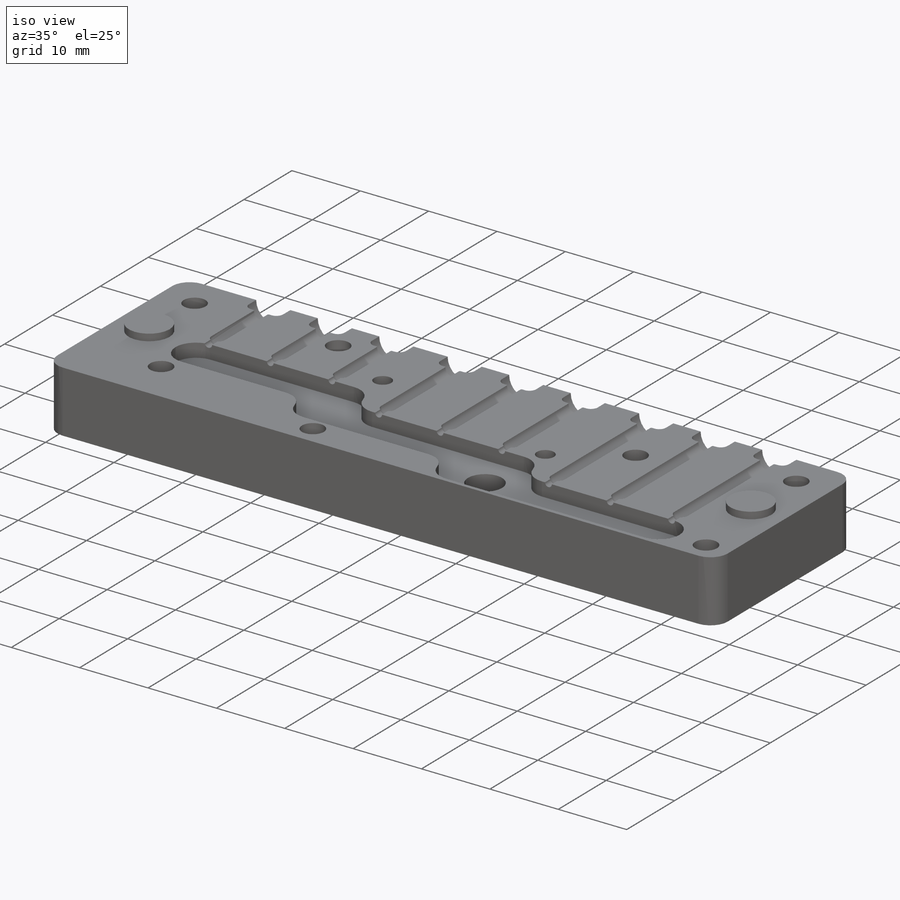
[diagram: iso view]
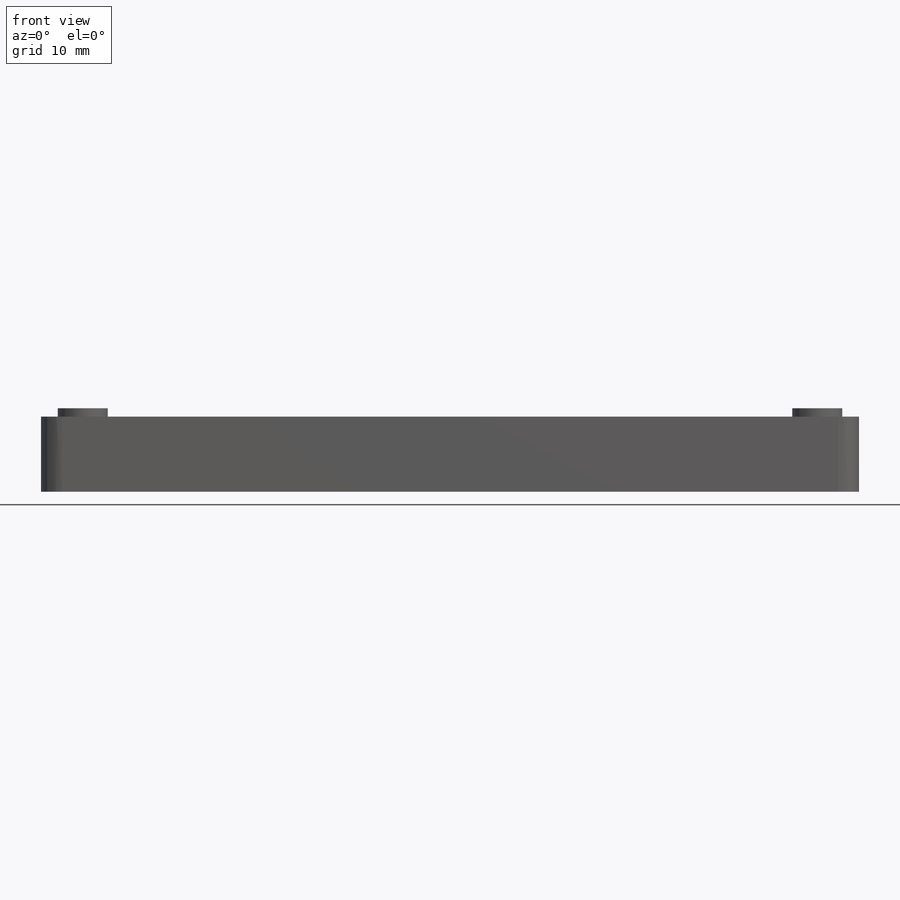
[diagram: front view]
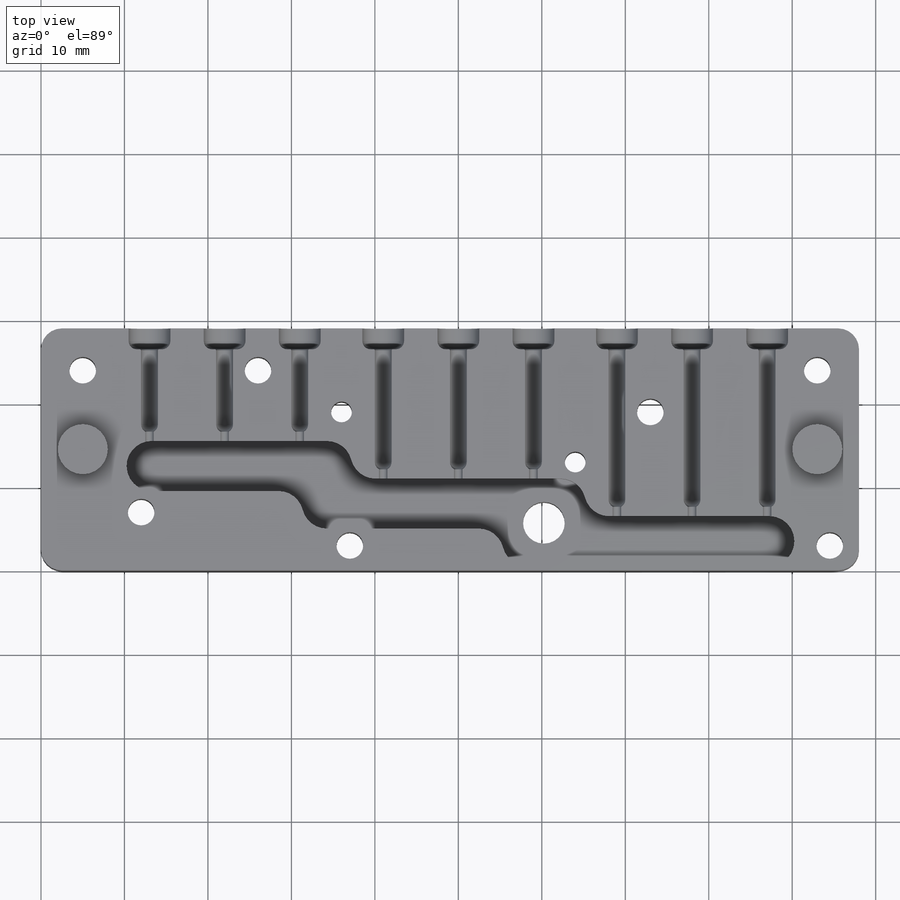
[diagram: top view]
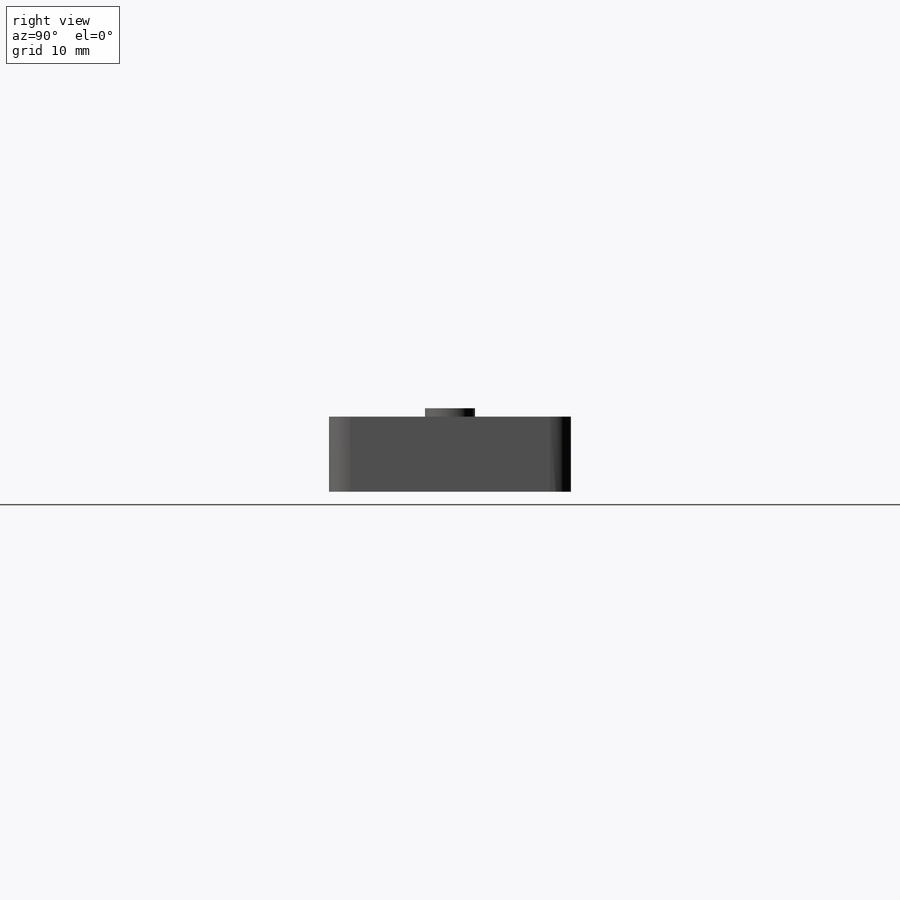
[diagram: right view]
SOLIDWORKS PART (.sldprt)
format: sldprt  version: not decoded by parser v0  size: 1,784,320 bytes
history: native  units: mm
features: sketch x17, cut_extrude x8, fillet x6, plane x3, extrude x3, hole x2, thread x2, material x1, chamfer x1 (+9 scaffold rows collapsed)
feature tree (52):
  scaffold x9  (default folders/planes/origin — collapsed)
  material  "Material <nicht festgelegt>"
  plane  "Ebene vorne"
  plane  "Ebene oben"
  plane  "Ebene rechts"
  sketch  "Skizze1"  dims[D1=98.0mm D2=29.0mm]
  extrude  "Aufsatz-Linear austragen1"  Depth=9mm
  sketch  "Skizze2"  dims[D1=2.0mm D2=9.0mm D3=13.0mm D5=10.0mm D6=36.0mm D4=3.0]
  cut_extrude  "Schnitt-Linear austragen1"  Depth=12.5mm
  fillet  "Verrundung5"  Radius=2.5mm
  cut_extrude  "Schnitt-Linear austragen2"  [1 undecoded]
  sketch  "Skizze2<4>"  dims[D1=17.0mm]
  cut_extrude  "Schnitt-Linear austragen3"  [1 undecoded]
  sketch  "Skizze2<5>"  dims[D1=21.5mm]
  sketch  "Skizze4"  dims[D1=5.0mm D2=3.0]
  cut_extrude  "Schnitt-Linear austragen4"  Depth=2.5mm
  fillet  "Verrundung1"  Radius=1mm
  chamfer  "Fase1"  Distance=0.1mm Angle=45deg
  sketch  "Skizze5"  dims[c1.D1=1.0mm c1.D2=0.5mm c1.D4=9.0mm c1.D5=4.0mm c1.D6=9.0mm c1.D8=9.0mm c2.D2=0.5mm c2.D3=3.0 c2.D5=3.0 c2.D7=3.0]
  cut_extrude  "Schnitt-Linear austragen5"  Depth=0.25mm
  sketch  "Skizze6"  dims[D1=6.0mm D2=6.0mm D3=6.0mm D4=10.0mm D5=2.5mm D6=3.0mm]
  cut_extrude  "Schnitt-Linear austragen6"  Depth=2mm
  sketch  "Skizze7"  dims[D1=5.0mm]
  cut_extrude  "Schnitt-Linear austragen7"  [1 undecoded]
  fillet  "Verrundung2"  Radius=3mm
  fillet  "Verrundung6"  Radius=3mm
  sketch  "Skizze15"  dims[D1=1.0mm D2=3.0 D3=3.0]
  cut_extrude  "Schnitt-Linear austragen8"  [1 undecoded]
  hole  "Durchgangsloch für M31"  Diameter=3.2mm Depth=9mm
  sketch  "Skizze9"  dims[D1=5.0mm D2=5.0mm D3=26.0mm D4=5.0mm D5=25.0mm D6=5.0mm D7=12.0mm D8=3.5mm D9=3.0mm D10=4.0mm D11=25.0mm]
  sketch  "Skizze8"  dims[hole-wizard template sketch: 59 standard entries collapsed; hole parameters kept: c18.Bohrerdurchmesser=3.2mm c18.Bohrungstiefe=9.0mm]
  hole  "M3 Gewindebohrung1"  Diameter=2.5mm Depth=9mm
  sketch  "Skizze14"  dims[D1=10.0mm D2=16.0mm]
  sketch  "Skizze13"  dims[hole-wizard template sketch: 60 standard entries collapsed; hole parameters kept: c18.Bohrungstiefe=9.0mm]
  thread  "Bohrungsgewinde1"  Diameter=3mm  [1 undecoded]
  thread  "Bohrungsgewinde2"  Diameter=3mm  [1 undecoded]
  sketch  "Skizze10"  dims[D1=6.0mm D2=5.0mm]
  extrude  "Aufsatz-Linear austragen2"  Depth=1mm
  sketch  "Skizze17"  dims[D1=0.75mm D2=0.75mm D3=0.75mm D4=0.75mm]
  sketch  "Skizze18"  dims[D1=1.0mm D2=1.0mm D3=1.0mm D4=3.0]
  sketch  "Skizze12"  dims[D1=1.0mm D2=6.0mm D3=3.0]
  extrude  "Aufsatz-Linear austragen3"  Depth=8mm
  fillet  "Verrundung3"  Radius=3mm
  fillet  "Verrundung4"  Radius=1mm
decode coverage: 35 of 39 modeling features carry decoded parameters
note: ~ marks probable driven/reference dimensions
note: 6 parameter values undecoded
summary: no parameter record found for 4 features
note: suppression state not decoded; provenance and decode notes live in map.json
